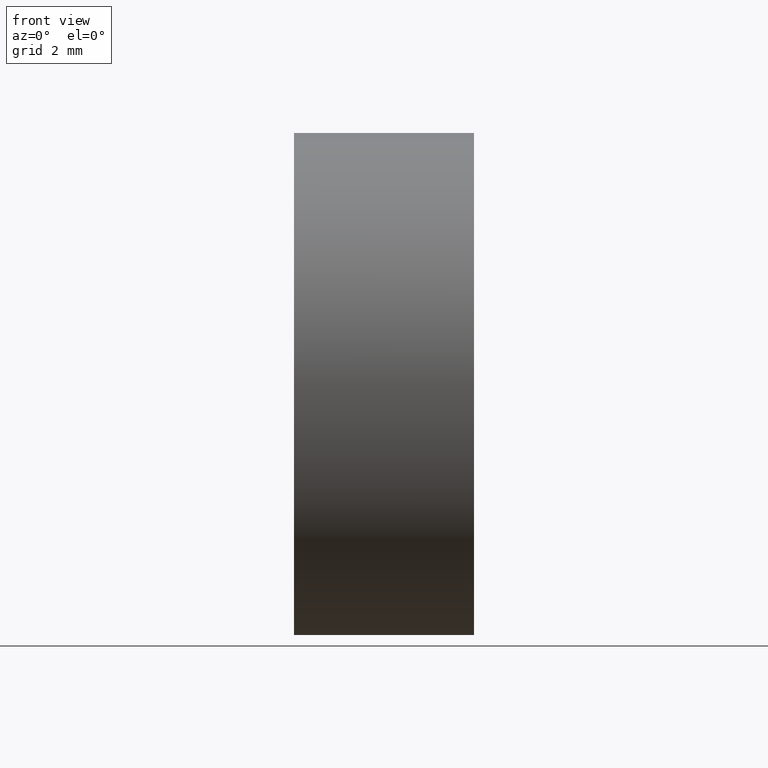
[diagram: clean part render]
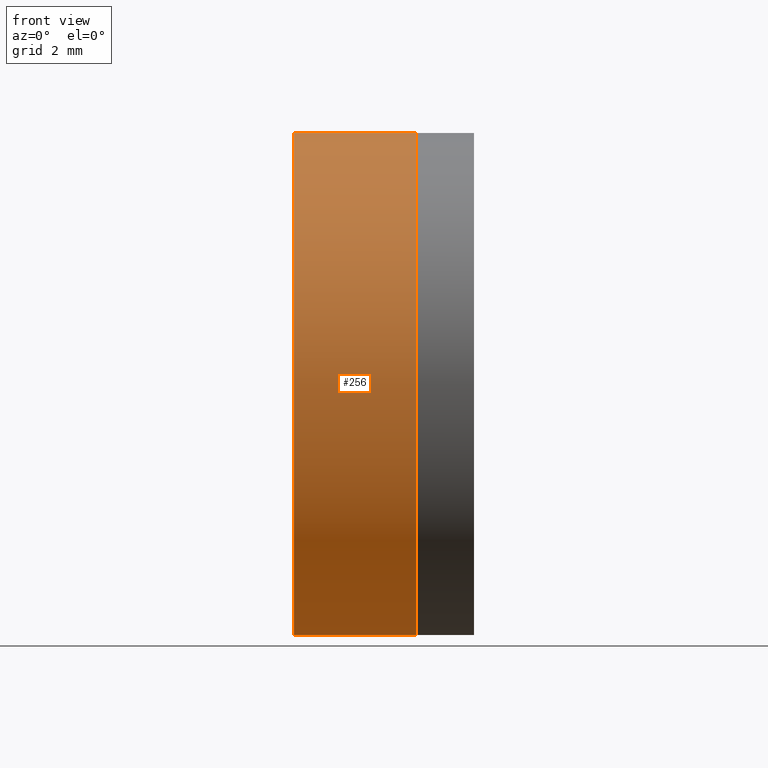
[diagram: same view with one face highlighted and labeled with its STEP entity id]
A machine part, front view. The second image highlights one B-rep face of the part: STEP entity #256.
In plain terms, the highlighted cylindrical surface (partial cylindrical patch) has radius 6.35 mm, axis along (-1, -0, 0).
Its self-contained STEP definition (entity closure, byte-faithful):
#3 = ORIENTED_EDGE ( 'NONE', *, *, #257, .F. ) ;
#4 = LINE ( 'NONE', #68, #142 ) ;
#27 = AXIS2_PLACEMENT_3D ( 'NONE', #268, #120, #103 ) ;
#43 = DIRECTION ( 'NONE',  ( 0.0000000000000000000, 0.0000000000000000000, 1.000000000000000000 ) ) ;
#47 = CARTESIAN_POINT ( 'NONE',  ( 228.8920918545435900, 7.776507174585745400E-016, -6.350000000000084900 ) ) ;
#62 = EDGE_CURVE ( 'NONE', #262, #322, #4, .T. ) ;
#64 = CARTESIAN_POINT ( 'NONE',  ( 225.7919910479895400, 7.776507174585746400E-016, -6.350000000000048500 ) ) ;
#68 = CARTESIAN_POINT ( 'NONE',  ( -0.8160621761658051200, 7.776507174585743400E-016, -6.350000000000041400 ) ) ;
#91 = DIRECTION ( 'NONE',  ( -1.000000000000000000, -0.0000000000000000000, 1.836970198721029700E-016 ) ) ;
#94 = CARTESIAN_POINT ( 'NONE',  ( -0.8160621761658027900, 0.0000000000000000000, 6.350000000000041400 ) ) ;
#103 = DIRECTION ( 'NONE',  ( 1.878145495644168800E-016, 0.0000000000000000000, 1.000000000000000000 ) ) ;
#110 = ORIENTED_EDGE ( 'NONE', *, *, #62, .F. ) ;
#120 = DIRECTION ( 'NONE',  ( -1.000000000000000000, -0.0000000000000000000, 1.836970198721029700E-016 ) ) ;
#123 = CIRCLE ( 'NONE', #290, 6.350000000000041400 ) ;
#138 = CYLINDRICAL_SURFACE ( 'NONE', #27, 6.350000000000041400 ) ;
#141 = VERTEX_POINT ( 'NONE', #248 ) ;
#142 = VECTOR ( 'NONE', #205, 1000.000000000000000 ) ;
#153 = DIRECTION ( 'NONE',  ( 0.0000000000000000000, 0.0000000000000000000, 1.000000000000000000 ) ) ;
#161 = ORIENTED_EDGE ( 'NONE', *, *, #189, .T. ) ;
#175 = DIRECTION ( 'NONE',  ( -1.000000000000000000, -0.0000000000000000000, 1.836970198721029700E-016 ) ) ;
#189 = EDGE_CURVE ( 'NONE', #262, #304, #344, .T. ) ;
#205 = DIRECTION ( 'NONE',  ( -1.000000000000000000, -0.0000000000000000000, 1.836970198721029700E-016 ) ) ;
#207 = CARTESIAN_POINT ( 'NONE',  ( 228.8920918545435900, 0.0000000000000000000, -4.219670333576331500E-014 ) ) ;
#212 = CARTESIAN_POINT ( 'NONE',  ( 225.7919910479895400, 0.0000000000000000000, -4.162722405629622800E-014 ) ) ;
#215 = LINE ( 'NONE', #94, #310 ) ;
#238 = EDGE_CURVE ( 'NONE', #304, #141, #215, .T. ) ;
#248 = CARTESIAN_POINT ( 'NONE',  ( 225.7919910479895400, 0.0000000000000000000, 6.350000000000003200 ) ) ;
#256 = ADVANCED_FACE ( 'NONE', ( #289 ), #138, .T. ) ;
#257 = EDGE_CURVE ( 'NONE', #322, #141, #123, .T. ) ;
#262 = VERTEX_POINT ( 'NONE', #47 ) ;
#268 = CARTESIAN_POINT ( 'NONE',  ( -0.8160621761658039000, 0.0000000000000000000, 0.0000000000000000000 ) ) ;
#289 = FACE_OUTER_BOUND ( 'NONE', #339, .T. ) ;
#290 = AXIS2_PLACEMENT_3D ( 'NONE', #212, #337, #153 ) ;
#304 = VERTEX_POINT ( 'NONE', #307 ) ;
#307 = CARTESIAN_POINT ( 'NONE',  ( 228.8920918545435900, 0.0000000000000000000, 6.349999999999999600 ) ) ;
#310 = VECTOR ( 'NONE', #91, 1000.000000000000000 ) ;
#316 = AXIS2_PLACEMENT_3D ( 'NONE', #207, #175, #43 ) ;
#322 = VERTEX_POINT ( 'NONE', #64 ) ;
#327 = ORIENTED_EDGE ( 'NONE', *, *, #238, .T. ) ;
#337 = DIRECTION ( 'NONE',  ( -1.000000000000000000, -0.0000000000000000000, 1.836970198721029700E-016 ) ) ;
#339 = EDGE_LOOP ( 'NONE', ( #110, #161, #327, #3 ) ) ;
#344 = CIRCLE ( 'NONE', #316, 6.350000000000042300 ) ;